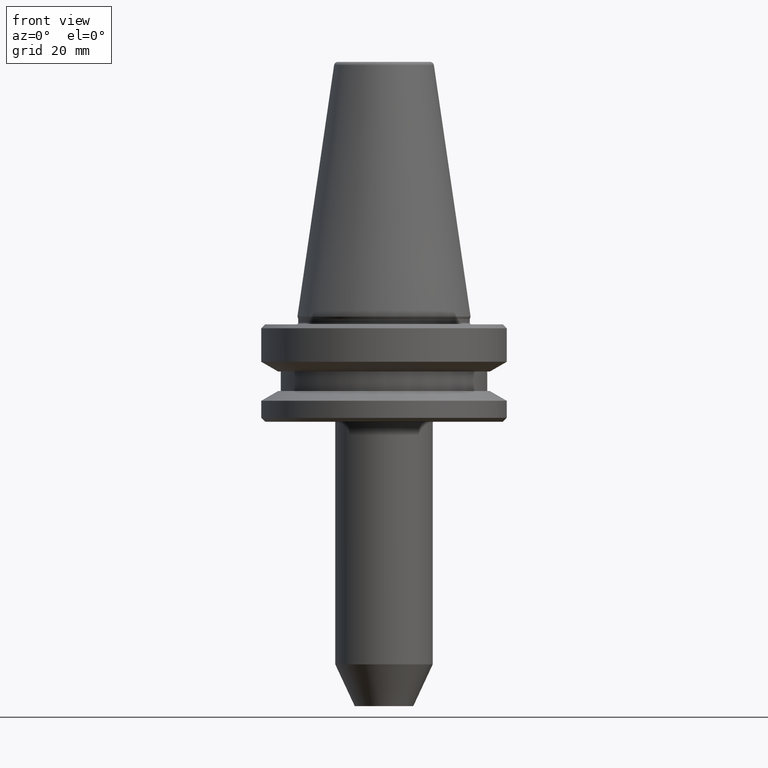
[diagram: clean part render]
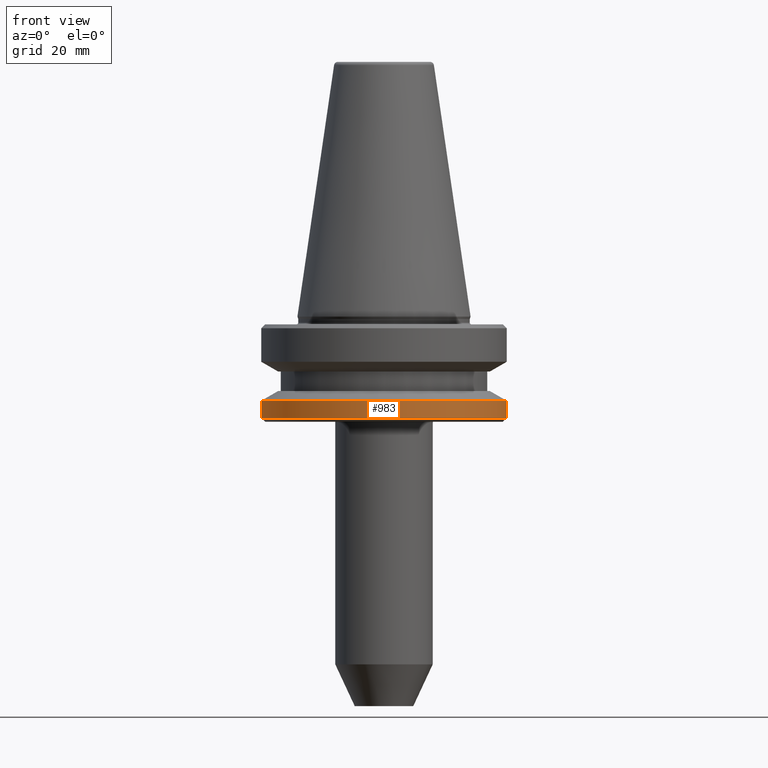
[diagram: same view with one face highlighted and labeled with its STEP entity id]
A machine part, front view. The second image highlights one B-rep face of the part: STEP entity #983.
In plain terms, the highlighted cylindrical surface (partial cylindrical patch) has radius 31.5 mm, axis along (-0, -0, 1).
Its self-contained STEP definition (entity closure, byte-faithful):
#23 = VECTOR ( 'NONE', #727, 1000.000000000000000 ) ;
#30 = CARTESIAN_POINT ( 'NONE',  ( 0.0000000000000000000, 0.0000000000000000000, -26.00000000000057900 ) ) ;
#66 = EDGE_CURVE ( 'NONE', #132, #612, #484, .T. ) ;
#72 = CARTESIAN_POINT ( 'NONE',  ( 31.49999999999975100, 0.0000000000000000000, -21.60014200631771400 ) ) ;
#74 = ORIENTED_EDGE ( 'NONE', *, *, #159, .F. ) ;
#93 = ORIENTED_EDGE ( 'NONE', *, *, #278, .F. ) ;
#124 = CARTESIAN_POINT ( 'NONE',  ( 31.49999999999975100, 0.0000000000000000000, 94.60731411746931500 ) ) ;
#132 = VERTEX_POINT ( 'NONE', #336 ) ;
#136 = DIRECTION ( 'NONE',  ( -0.0000000000000000000, -0.0000000000000000000, 1.000000000000000000 ) ) ;
#153 = ORIENTED_EDGE ( 'NONE', *, *, #66, .T. ) ;
#159 = EDGE_CURVE ( 'NONE', #933, #262, #659, .T. ) ;
#167 = AXIS2_PLACEMENT_3D ( 'NONE', #30, #848, #865 ) ;
#196 = AXIS2_PLACEMENT_3D ( 'NONE', #950, #136, #534 ) ;
#212 = AXIS2_PLACEMENT_3D ( 'NONE', #877, #464, #332 ) ;
#234 = DIRECTION ( 'NONE',  ( -0.0000000000000000000, -0.0000000000000000000, 1.000000000000000000 ) ) ;
#262 = VERTEX_POINT ( 'NONE', #760 ) ;
#278 = EDGE_CURVE ( 'NONE', #262, #612, #473, .T. ) ;
#332 = DIRECTION ( 'NONE',  ( 1.000000000000000000, 0.0000000000000000000, 0.0000000000000000000 ) ) ;
#336 = CARTESIAN_POINT ( 'NONE',  ( 31.49999999999975100, 0.0000000000000000000, -26.00000000000057900 ) ) ;
#409 = CYLINDRICAL_SURFACE ( 'NONE', #196, 31.49999999999975100 ) ;
#433 = CARTESIAN_POINT ( 'NONE',  ( -31.49999999999975100, 3.857637417314131900E-015, 94.60731411746931500 ) ) ;
#464 = DIRECTION ( 'NONE',  ( -0.0000000000000000000, -0.0000000000000000000, 1.000000000000000000 ) ) ;
#472 = ORIENTED_EDGE ( 'NONE', *, *, #556, .T. ) ;
#473 = CIRCLE ( 'NONE', #212, 31.49999999999975100 ) ;
#484 = LINE ( 'NONE', #124, #23 ) ;
#534 = DIRECTION ( 'NONE',  ( 1.000000000000000000, 0.0000000000000000000, 0.0000000000000000000 ) ) ;
#556 = EDGE_CURVE ( 'NONE', #933, #132, #823, .T. ) ;
#599 = VECTOR ( 'NONE', #234, 1000.000000000000000 ) ;
#612 = VERTEX_POINT ( 'NONE', #72 ) ;
#659 = LINE ( 'NONE', #433, #599 ) ;
#668 = FACE_OUTER_BOUND ( 'NONE', #769, .T. ) ;
#676 = CARTESIAN_POINT ( 'NONE',  ( -31.49999999999975100, 3.857637417314131900E-015, -26.00000000000057900 ) ) ;
#727 = DIRECTION ( 'NONE',  ( -0.0000000000000000000, -0.0000000000000000000, 1.000000000000000000 ) ) ;
#760 = CARTESIAN_POINT ( 'NONE',  ( -31.49999999999975100, 3.857637417314131900E-015, -21.60014200631771400 ) ) ;
#769 = EDGE_LOOP ( 'NONE', ( #74, #472, #153, #93 ) ) ;
#823 = CIRCLE ( 'NONE', #167, 31.49999999999975100 ) ;
#848 = DIRECTION ( 'NONE',  ( -0.0000000000000000000, -0.0000000000000000000, 1.000000000000000000 ) ) ;
#865 = DIRECTION ( 'NONE',  ( 1.000000000000000000, 0.0000000000000000000, 0.0000000000000000000 ) ) ;
#877 = CARTESIAN_POINT ( 'NONE',  ( 0.0000000000000000000, 0.0000000000000000000, -21.60014200631771400 ) ) ;
#933 = VERTEX_POINT ( 'NONE', #676 ) ;
#950 = CARTESIAN_POINT ( 'NONE',  ( 0.0000000000000000000, 0.0000000000000000000, 94.60731411746931500 ) ) ;
#983 = ADVANCED_FACE ( 'NONE', ( #668 ), #409, .T. ) ;